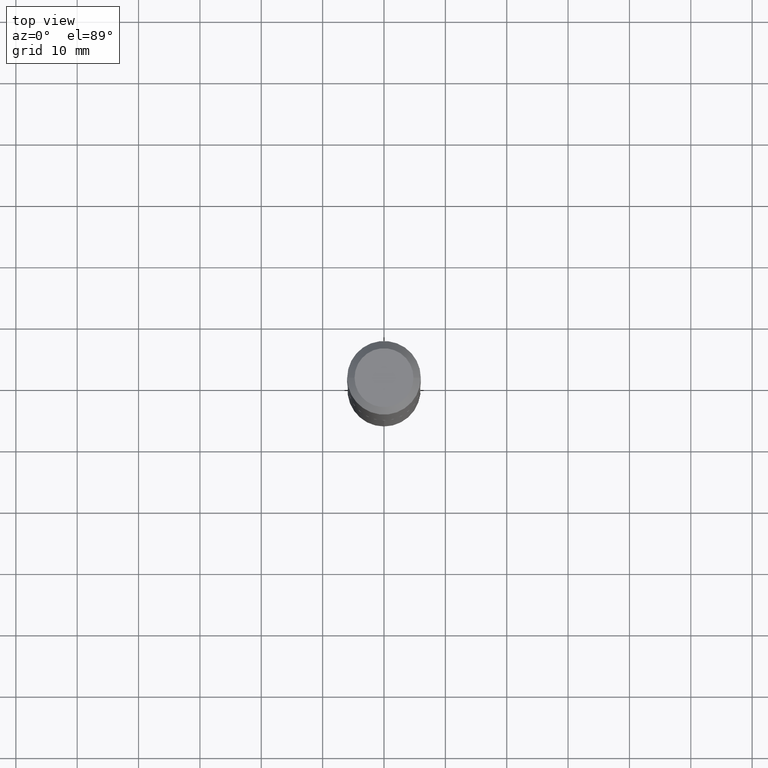
[diagram: clean part render]
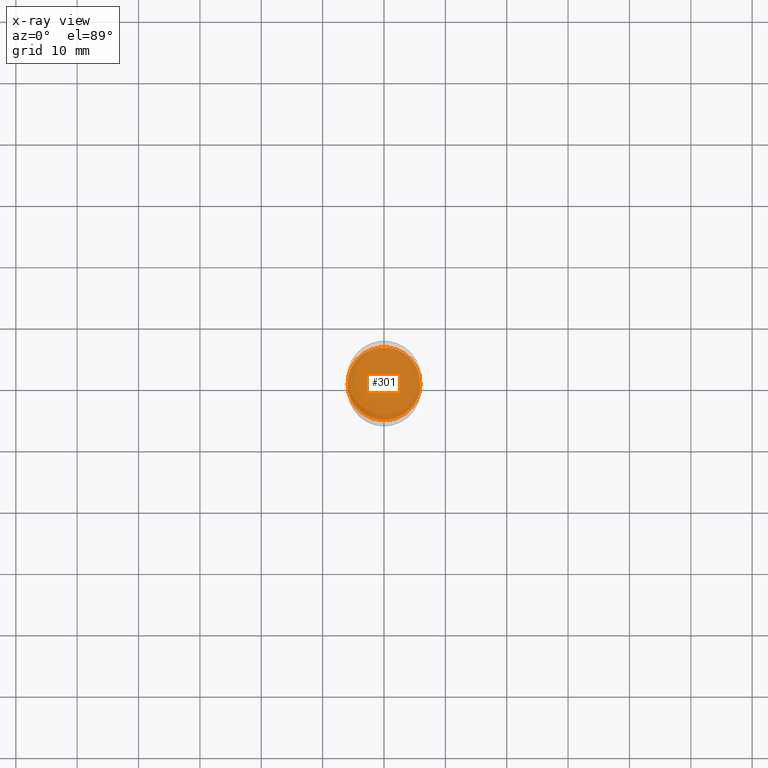
[diagram: x-ray — body ghosted, one internal face saturated and labeled with its STEP entity id]
A machine part, top view, then the same camera in x-ray: the body is ghosted and one INTERNAL B-rep face — a face not visible from any outside direction — is saturated and labeled: STEP entity #301.
In plain terms, the highlighted planar face has unit normal (-0, 0, 1).
Its self-contained STEP definition (entity closure, byte-faithful):
#25 = DIRECTION ( 'NONE',  ( -2.445468806185136597E-29, 3.491481338843145583E-15, 1.000000000000000000 ) ) ;
#41 = EDGE_CURVE ( 'NONE', #110, #262, #437, .T. ) ;
#109 = DIRECTION ( 'NONE',  ( 1.000000000000000000, -6.982962677686265922E-15, 4.876176775795935793E-29 ) ) ;
#110 = VERTEX_POINT ( 'NONE', #367 ) ;
#148 = AXIS2_PLACEMENT_3D ( 'NONE', #158, #308, #317 ) ;
#158 = CARTESIAN_POINT ( 'NONE',  ( 5.670797614662712652E-29, -8.096396076643368740E-15, -2.318899999999999739 ) ) ;
#161 = EDGE_CURVE ( 'NONE', #262, #110, #259, .T. ) ;
#169 = CARTESIAN_POINT ( 'NONE',  ( -0.2337500000000000133, -6.432853204630024837E-15, -2.318899999999999739 ) ) ;
#204 = AXIS2_PLACEMENT_3D ( 'NONE', #441, #25, #249 ) ;
#217 = ORIENTED_EDGE ( 'NONE', *, *, #41, .F. ) ;
#249 = DIRECTION ( 'NONE',  ( 1.000000000000000000, -6.982962677686262766E-15, 0.000000000000000000 ) ) ;
#259 = CIRCLE ( 'NONE', #204, 0.2337500000000000133 ) ;
#262 = VERTEX_POINT ( 'NONE', #169 ) ;
#300 = FACE_OUTER_BOUND ( 'NONE', #322, .T. ) ;
#301 = ADVANCED_FACE ( 'NONE', ( #300 ), #446, .F. ) ;
#308 = DIRECTION ( 'NONE',  ( -2.445468806185136597E-29, 3.491481338843145583E-15, 1.000000000000000000 ) ) ;
#317 = DIRECTION ( 'NONE',  ( 1.000000000000000000, -6.982962677686262766E-15, 0.000000000000000000 ) ) ;
#322 = EDGE_LOOP ( 'NONE', ( #217, #459 ) ) ;
#367 = CARTESIAN_POINT ( 'NONE',  ( 0.2337500000000000133, -9.728663602552533741E-15, -2.318899999999999739 ) ) ;
#374 = DIRECTION ( 'NONE',  ( -2.438088387897960049E-29, 3.491481338843145188E-15, 1.000000000000000000 ) ) ;
#437 = CIRCLE ( 'NONE', #148, 0.2337500000000000133 ) ;
#441 = CARTESIAN_POINT ( 'NONE',  ( 5.670797614662712652E-29, -8.096396076643368740E-15, -2.318899999999999739 ) ) ;
#446 = PLANE ( 'NONE',  #489 ) ;
#450 = CARTESIAN_POINT ( 'NONE',  ( 5.670797614662712652E-29, -8.096396076643368740E-15, -2.318899999999999739 ) ) ;
#459 = ORIENTED_EDGE ( 'NONE', *, *, #161, .F. ) ;
#489 = AXIS2_PLACEMENT_3D ( 'NONE', #450, #374, #109 ) ;